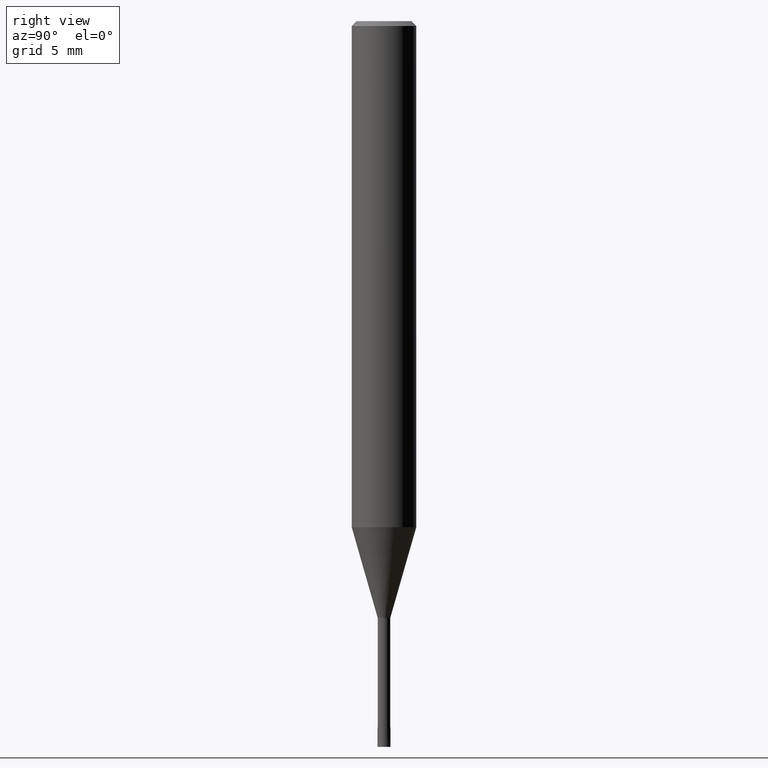
[diagram: clean part render]
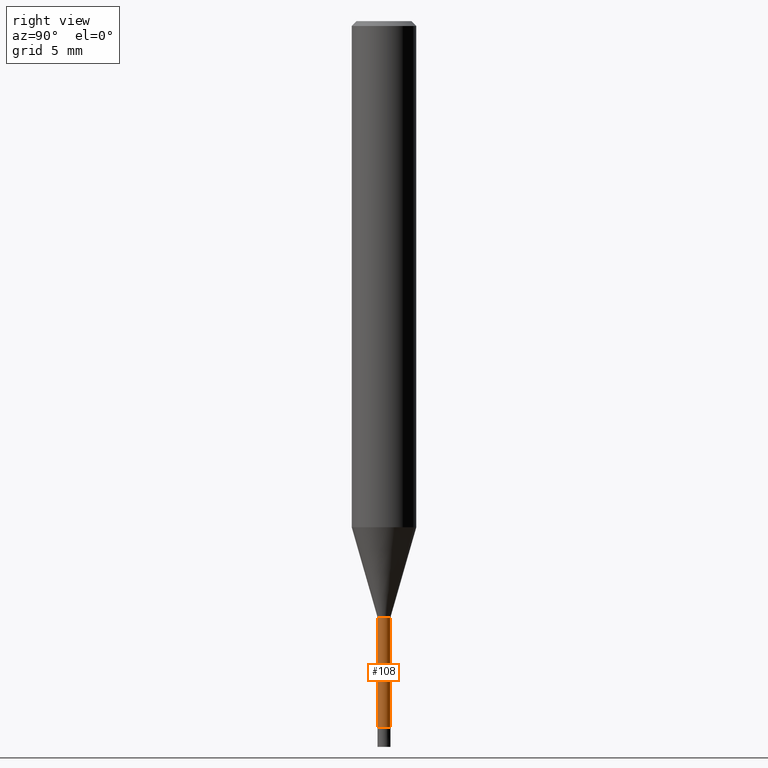
[diagram: same view with one face highlighted and labeled with its STEP entity id]
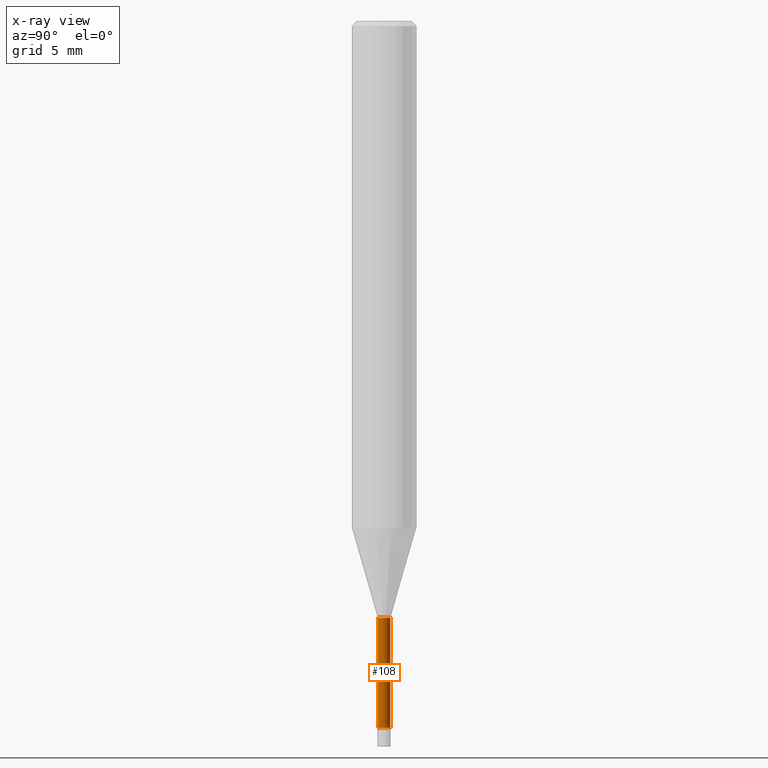
[diagram: x-ray of the same camera — body ghosted, the highlighted face saturated]
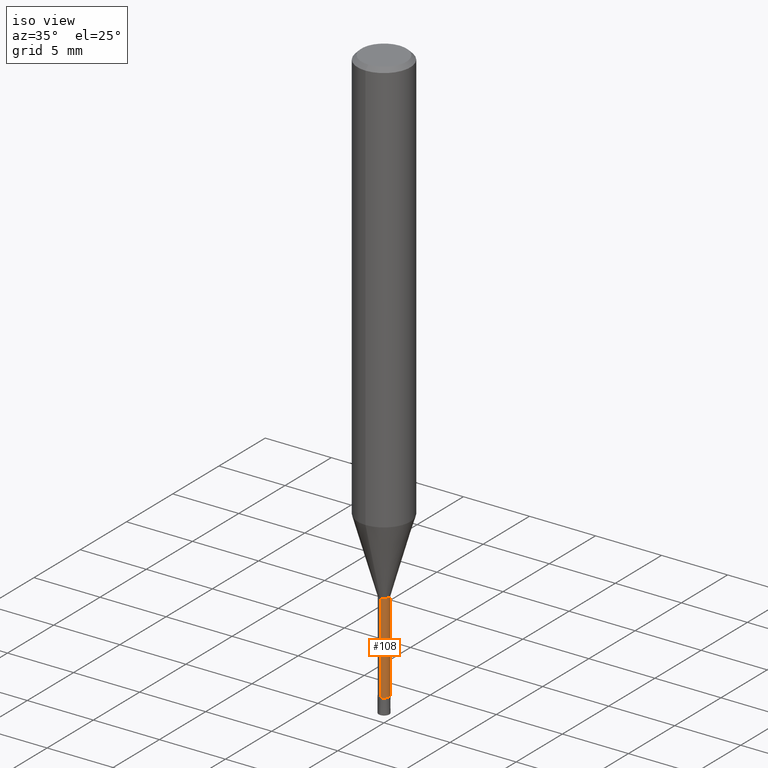
[diagram: same view with one face highlighted and labeled with its STEP entity id]
A machine part, right view. The second image highlights one B-rep face of the part: STEP entity #108.
The next image is the same camera in x-ray: the body ghosted, the highlighted face saturated — about 0% of this face is hidden behind the body in this view.
A second angle (iso view) of the same face is appended — the face is thin or edge-on in the first view.
In plain terms, the highlighted cylindrical surface (edge-blend (fillet) strip) has radius 0.39 mm, axis along (-0, -0, 1).
Its self-contained STEP definition (entity closure, byte-faithful):
#98=VERTEX_POINT('',#236);
#102=VERTEX_POINT('',#240);
#106=EDGE_CURVE('',#102,#140,#244,.T.);
#108=ADVANCED_FACE('',(#246),#247,.T.);
#140=VERTEX_POINT('',#282);
#166=EDGE_CURVE('',#186,#102,#313,.T.);
#184=EDGE_CURVE('',#98,#140,#335,.T.);
#186=VERTEX_POINT('',#337);
#192=EDGE_CURVE('',#98,#186,#344,.T.);
#236=CARTESIAN_POINT('',(0.0,0.38995,-37.0));
#240=CARTESIAN_POINT('',(4.77535247673036E-017,-0.38995,-43.8));
#244=LINE('',#390,#391);
#246=FACE_OUTER_BOUND('',#393,.T.);
#247=CYLINDRICAL_SURFACE('',#394,0.38995);
#282=CARTESIAN_POINT('',(4.77535247673036E-017,-0.38995,-37.0));
#313=CIRCLE('',#480,0.38995);
#335=CIRCLE('',#505,0.38995);
#337=CARTESIAN_POINT('',(0.0,0.38995,-43.8));
#344=LINE('',#517,#518);
#390=CARTESIAN_POINT('',(4.77535247673036E-017,-0.38995,-40.4));
#391=VECTOR('',#552,1.0);
#393=EDGE_LOOP('',(#554,#555,#556,#557));
#394=AXIS2_PLACEMENT_3D('',#558,#559,#560);
#480=AXIS2_PLACEMENT_3D('',#655,#656,#657);
#505=AXIS2_PLACEMENT_3D('',#688,#689,#690);
#517=CARTESIAN_POINT('',(-4.77535247673036E-017,0.38995,-40.4));
#518=VECTOR('',#700,1.0);
#552=DIRECTION('',(-0.0,-0.0,1.0));
#554=ORIENTED_EDGE('',*,*,#192,.F.);
#555=ORIENTED_EDGE('',*,*,#184,.T.);
#556=ORIENTED_EDGE('',*,*,#106,.F.);
#557=ORIENTED_EDGE('',*,*,#166,.F.);
#558=CARTESIAN_POINT('',(0.0,0.0,-40.4));
#559=DIRECTION('',(-0.0,-0.0,1.0));
#560=DIRECTION('',(0.0,1.0,0.0));
#655=CARTESIAN_POINT('',(0.0,0.0,-43.8));
#656=DIRECTION('',(0.0,0.0,-1.0));
#657=DIRECTION('',(0.0,1.0,0.0));
#688=CARTESIAN_POINT('',(0.0,0.0,-37.0));
#689=DIRECTION('',(0.0,0.0,-1.0));
#690=DIRECTION('',(0.0,1.0,0.0));
#700=DIRECTION('',(0.0,0.0,-1.0));